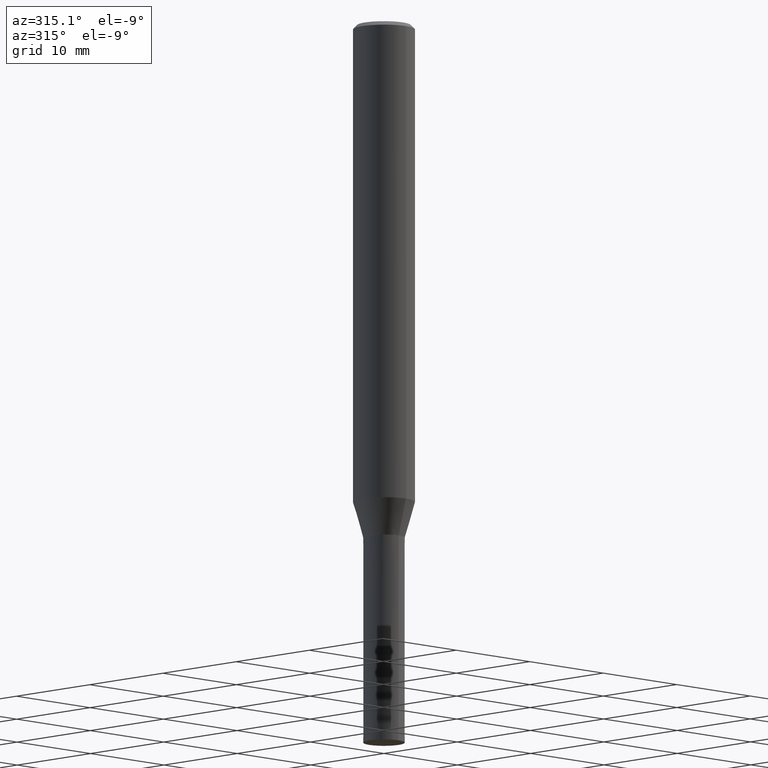
[diagram: clean part render]
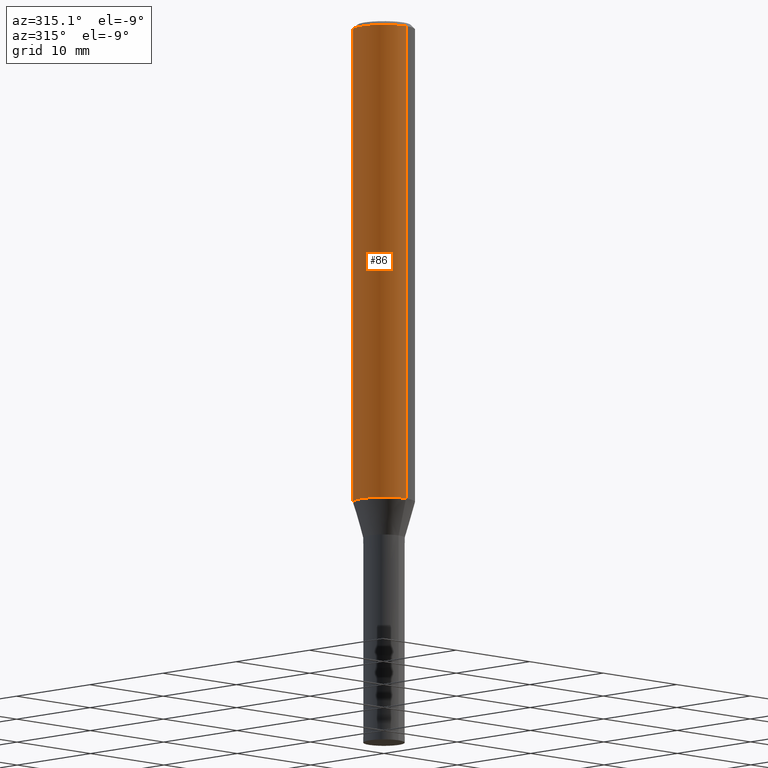
[diagram: same view with one face highlighted and labeled with its STEP entity id]
A machine part, auxiliary view. The second image highlights one B-rep face of the part: STEP entity #86.
In plain terms, the highlighted cylindrical surface (edge-blend (fillet) strip) has radius 3 mm, axis along (-0, -0, 1).
Its self-contained STEP definition (entity closure, byte-faithful):
#86=ADVANCED_FACE('',(#208),#209,.T.);
#92=EDGE_CURVE('',#180,#148,#215,.T.);
#120=EDGE_CURVE('',#148,#160,#247,.T.);
#146=EDGE_CURVE('',#160,#170,#278,.T.);
#148=VERTEX_POINT('',#280);
#158=EDGE_CURVE('',#180,#170,#291,.T.);
#160=VERTEX_POINT('',#293);
#170=VERTEX_POINT('',#303);
#180=VERTEX_POINT('',#313);
#208=FACE_OUTER_BOUND('',#335,.T.);
#209=CYLINDRICAL_SURFACE('',#336,3.0);
#215=LINE('',#346,#347);
#247=CIRCLE('',#389,3.0);
#278=LINE('',#426,#427);
#280=CARTESIAN_POINT('',(3.67381906146713E-016,-3.0,-0.399999999999999));
#291=CIRCLE('',#440,3.0);
#293=CARTESIAN_POINT('',(0.0,3.0,-0.399999999999999));
#303=CARTESIAN_POINT('',(0.0,3.0,-46.513));
#313=CARTESIAN_POINT('',(3.67381906146713E-016,-3.0,-46.513));
#335=EDGE_LOOP('',(#483,#484,#485,#486));
#336=AXIS2_PLACEMENT_3D('',#487,#488,#489);
#346=CARTESIAN_POINT('',(3.67381906146713E-016,-3.0,-23.4565));
#347=VECTOR('',#494,1.0);
#389=AXIS2_PLACEMENT_3D('',#540,#541,#542);
#426=CARTESIAN_POINT('',(-3.67381906146713E-016,3.0,-23.4565));
#427=VECTOR('',#591,1.0);
#440=AXIS2_PLACEMENT_3D('',#601,#602,#603);
#483=ORIENTED_EDGE('',*,*,#146,.T.);
#484=ORIENTED_EDGE('',*,*,#158,.F.);
#485=ORIENTED_EDGE('',*,*,#92,.T.);
#486=ORIENTED_EDGE('',*,*,#120,.T.);
#487=CARTESIAN_POINT('',(0.0,0.0,-23.4565));
#488=DIRECTION('',(-0.0,-0.0,1.0));
#489=DIRECTION('',(0.0,1.0,0.0));
#494=DIRECTION('',(-0.0,-0.0,1.0));
#540=CARTESIAN_POINT('',(0.0,0.0,-0.399999999999999));
#541=DIRECTION('',(0.0,0.0,-1.0));
#542=DIRECTION('',(0.0,1.0,0.0));
#591=DIRECTION('',(0.0,0.0,-1.0));
#601=CARTESIAN_POINT('',(0.0,0.0,-46.513));
#602=DIRECTION('',(0.0,0.0,-1.0));
#603=DIRECTION('',(0.0,1.0,0.0));